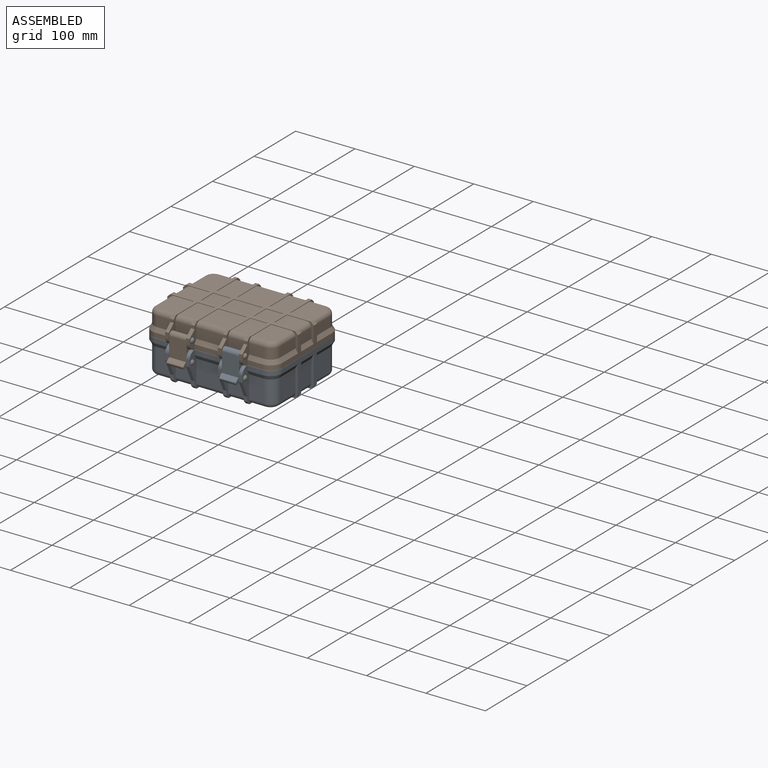
[diagram: assembled view]
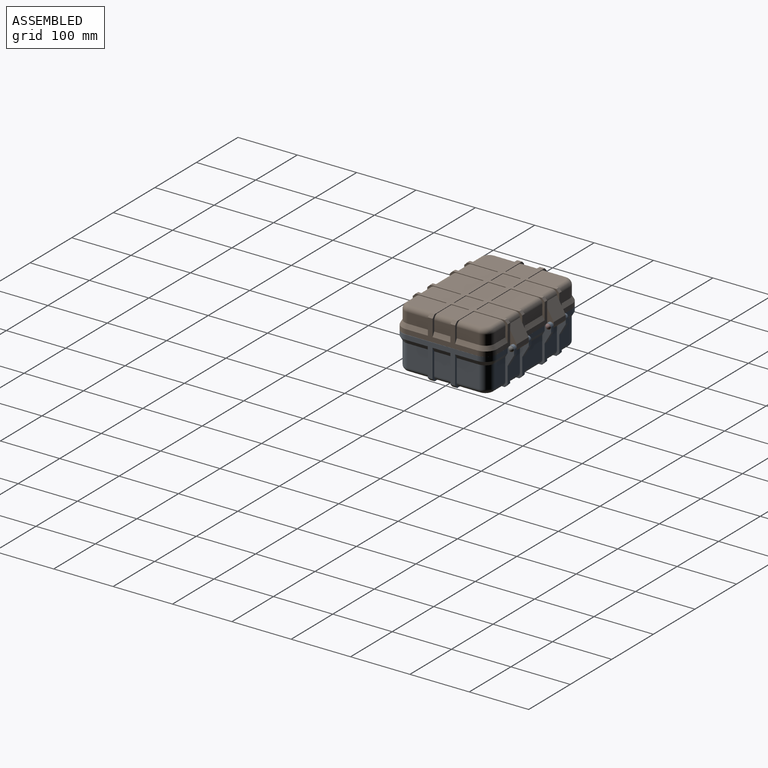
[diagram: assembled view, second angle]
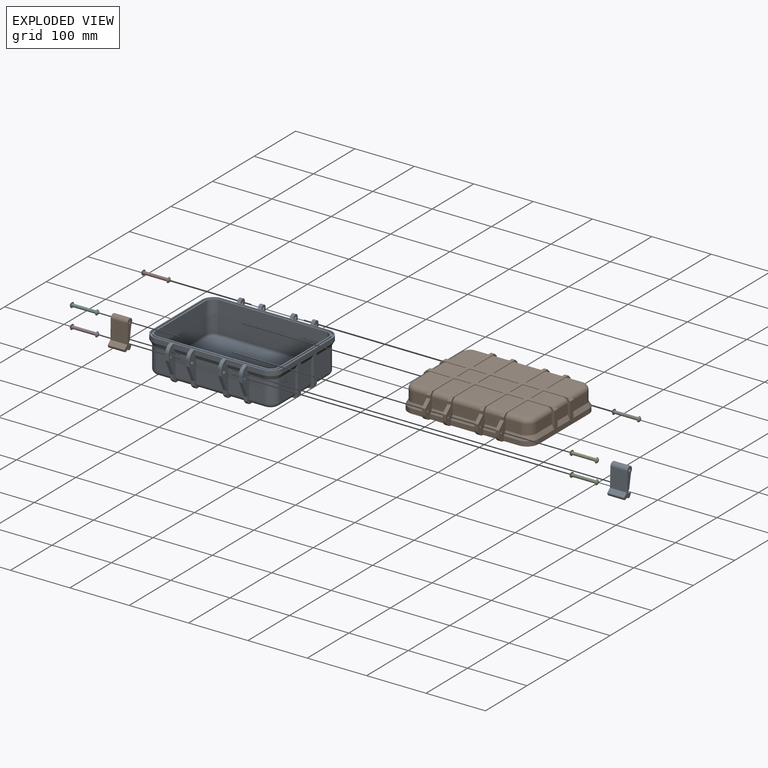
[diagram: exploded view]
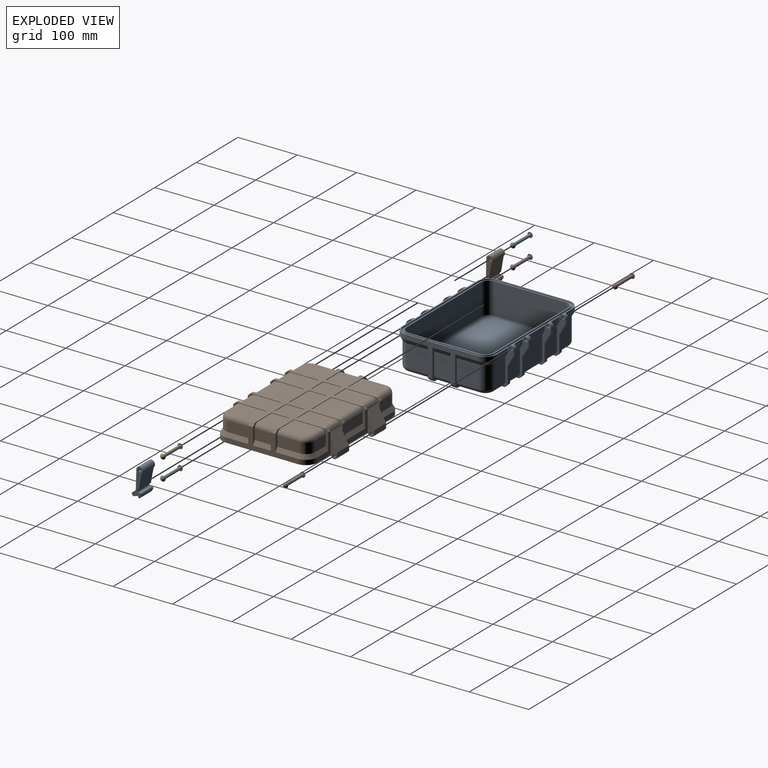
[diagram: exploded view, second angle]
FCSTD DOCUMENT  (FreeCAD 1.0R39319 (Git))
Label: AssemblyBox
License: All rights reserved
LicenseURL: https://en.wikipedia.org/wiki/All_rights_reserved
objects: App::Link×10, App::FeaturePython×10, Part::Feature×4, App::DocumentObjectGroup×1, Assembly::JointGroup×1, Assembly::AssemblyObject×1
note: 4 computed .brp shape members not serialized (recipe doc carries the construction recipe); baked Part::Feature solids carry a one-line shape summary decoded from their .brp

FEATURE [Part::Feature] Body004  label="Part005"
  shape: bbox 226 x 189 x 72 mm, 243 faces (baked)
FEATURE [Part::Feature] Body005  label="Part006"
  shape: bbox 226 x 189 x 52 mm, 209 faces (baked)
FEATURE [Part::Feature] Body006  label="Part007"
  shape: bbox 47.5 x 8.899 x 8.899 mm, 5 faces (baked)
FEATURE [Part::Feature] Body007  label="Part008"
  shape: bbox 28.5 x 19.14 x 49.09 mm, 47 faces (baked)
FEATURE [App::DocumentObjectGroup] Group
  Group = -> [Body004,Body005,Body006,Body007]
FEATURE [App::Link] Part005  label="Part009"
  LinkedObject = -> Body004
FEATURE [App::FeaturePython] GroundedJoint  # Assembly grounded joint (typed FeaturePython)
  ObjectToGround = -> Part005
FEATURE [App::Link] Part006  label="Part010"
  LinkPlacement = pos=(-3.05e-14,0.0885071,100.19) rot=(0,0.999999,-0.001104;3.14159rad)
  LinkedObject = -> Body005
  Placement = pos=(-3.05e-14,0.0885071,100.19) rot=(0,0.999999,-0.001104;3.14159rad)
FEATURE [App::Link] Part007  label="Part011"
  LinkPlacement = pos=(44.25,-86,43) rot=(-1,0,0;1.5708rad)
  LinkedObject = -> Body006
  Placement = pos=(44.25,-86,43) rot=(-1,0,0;1.5708rad)
FEATURE [App::Link] Part008  label="Part012"
  LinkPlacement = pos=(-44.75,-86,43) rot=(-1,0,0;1.5708rad)
  LinkedObject = -> Body006
  Placement = pos=(-44.75,-86,43) rot=(-1,0,0;1.5708rad)
FEATURE [App::Link] Part009  label="Part013"
  LinkPlacement = pos=(44.25,-85.9643,76.3796) rot=(1,0,0;4.71018rad)
  LinkedObject = -> Body006
  Placement = pos=(44.25,-85.9643,76.3796) rot=(1,0,0;4.71018rad)
FEATURE [App::Link] Part010  label="Part014"
  LinkPlacement = pos=(-44.75,-85.9643,76.3796) rot=(1,0,0;4.71018rad)
  LinkedObject = -> Body006
  Placement = pos=(-44.75,-85.9643,76.3796) rot=(1,0,0;4.71018rad)
FEATURE [App::Link] Part011  label="Part015"
  LinkPlacement = pos=(44.25,86,60) rot=(-1,0,0;1.5708rad)
  LinkedObject = -> Body006
  Placement = pos=(44.25,86,60) rot=(-1,0,0;1.5708rad)
FEATURE [App::Link] Part012  label="Part016"
  LinkPlacement = pos=(-44.75,86,60) rot=(-1,0,0;1.5708rad)
  LinkedObject = -> Body006
  Placement = pos=(-44.75,86,60) rot=(-1,0,0;1.5708rad)
FEATURE [App::Link] Part013  label="Part017"
  LinkPlacement = pos=(30.5,-85.9643,76.3796) rot=(-1,0,0;0.029508rad)
  LinkedObject = -> Body007
  Placement = pos=(30.5,-85.9643,76.3796) rot=(-1,0,0;0.029508rad)
FEATURE [App::Link] Part014  label="Part018"
  LinkPlacement = pos=(-58.5,-85.9643,76.3796) rot=(-1,0,0;0.014097rad)
  LinkedObject = -> Body007
  Placement = pos=(-58.5,-85.9643,76.3796) rot=(-1,0,0;0.014097rad)
FEATURE [App::FeaturePython] Joint  label="Revolute"  # Assembly joint (typed FeaturePython)
  Activated = true
  AngleMax = 0
  AngleMin = 0
  Detach1 = false
  Detach2 = false
  Distance = 0
  Distance2 = 0
  EnableAngleMax = false
  EnableAngleMin = false
  EnableLengthMax = false
  EnableLengthMin = false
  JointType = 1 (Revolute)
  LengthMax = 0
  LengthMin = 0
  Placement1 = pos=(59,86,40) rot=(-0.57735,-0.57735,-0.57735;4.18879rad)
  Placement2 = pos=(-59,86,60) rot=(0.57735,0.57735,0.57735;2.0944rad)
  Reference1 = -> Assembly [Part006.Edge219,Part006.Edge219]
  Reference2 = -> Assembly [Part005.Edge312,Part005.Edge312]
FEATURE [App::FeaturePython] Joint001  label="Fixed"  # Assembly joint (typed FeaturePython)
  Activated = true
  AngleMax = 0
  AngleMin = 0
  Detach1 = false
  Detach2 = false
  Distance = 0
  Distance2 = 0
  EnableAngleMax = false
  EnableAngleMin = false
  EnableLengthMax = false
  EnableLengthMin = false
  JointType = 0 (Fixed)
  LengthMax = 0
  LengthMin = 0
  Placement1 = pos=(20.75,0,0) rot=(0.707107,0,0.707107;3.14159rad)
  Placement2 = pos=(65,-86,43) rot=(0.57735,0.57735,0.57735;2.0944rad)
  Reference1 = -> Assembly [Part007.Edge2,Part007.Edge2]
  Reference2 = -> Assembly [Part005.Edge396,Part005.Edge396]
FEATURE [App::FeaturePython] Joint002  label="Fixed001"  # Assembly joint (typed FeaturePython)
  Activated = true
  AngleMax = 0
  AngleMin = 0
  Detach1 = false
  Detach2 = false
  Distance = 0
  Distance2 = 0
  EnableAngleMax = false
  EnableAngleMin = false
  EnableLengthMax = false
  EnableLengthMin = false
  JointType = 0 (Fixed)
  LengthMax = 0
  LengthMin = 0
  Placement1 = pos=(20.75,0,0) rot=(0.707107,0,0.707107;3.14159rad)
  Placement2 = pos=(-24,-86,43) rot=(0.57735,0.57735,0.57735;2.0944rad)
  Reference1 = -> Assembly [Part008.Edge2,Part008.Edge2]
  Reference2 = -> Assembly [Part005.Edge212,Part005.Edge212]
FEATURE [App::FeaturePython] Joint003  label="Fixed002"  # Assembly joint (typed FeaturePython)
  Activated = true
  AngleMax = 0
  AngleMin = 0
  Detach1 = false
  Detach2 = false
  Distance = 0
  Distance2 = 0
  EnableAngleMax = false
  EnableAngleMin = false
  EnableLengthMax = false
  EnableLengthMin = false
  JointType = 0 (Fixed)
  LengthMax = 0
  LengthMin = 0
  Placement1 = pos=(20.75,0,0) rot=(-0.707107,0,-0.707107;3.14159rad)
  Placement2 = pos=(-65,-86,24) rot=(-0.57735,-0.57735,-0.57735;4.18879rad)
  Reference1 = -> Assembly [Part009.Edge2,Part009.Edge2]
  Reference2 = -> Assembly [Part006.Edge200,Part006.Edge200]
FEATURE [App::FeaturePython] Joint004  label="Fixed003"  # Assembly joint (typed FeaturePython)
  Activated = true
  AngleMax = 0
  AngleMin = 0
  Detach1 = false
  Detach2 = false
  Distance = 0
  Distance2 = 0
  EnableAngleMax = false
  EnableAngleMin = false
  EnableLengthMax = false
  EnableLengthMin = false
  JointType = 0 (Fixed)
  LengthMax = 0
  LengthMin = 0
  Placement1 = pos=(20.75,0,0) rot=(-0.707107,0,-0.707107;3.14159rad)
  Placement2 = pos=(24,-86,24) rot=(-0.57735,-0.57735,-0.57735;4.18879rad)
  Reference1 = -> Assembly [Part010.Edge2,Part010.Edge2]
  Reference2 = -> Assembly [Part006.Edge349,Part006.Edge349]
FEATURE [App::FeaturePython] Joint005  label="Fixed004"  # Assembly joint (typed FeaturePython)
  Activated = true
  AngleMax = 0
  AngleMin = 0
  Detach1 = false
  Detach2 = false
  Distance = 0
  Distance2 = 0
  EnableAngleMax = false
  EnableAngleMin = false
  EnableLengthMax = false
  EnableLengthMin = false
  JointType = 0 (Fixed)
  LengthMax = 0
  LengthMin = 0
  Placement1 = pos=(20.75,0,0) rot=(0.707107,0,0.707107;3.14159rad)
  Placement2 = pos=(65,86,60) rot=(0.57735,0.57735,0.57735;2.0944rad)
  Reference1 = -> Assembly [Part011.Edge2,Part011.Edge2]
  Reference2 = -> Assembly [Part005.Edge22,Part005.Edge22]
FEATURE [App::FeaturePython] Joint006  label="Fixed005"  # Assembly joint (typed FeaturePython)
  Activated = true
  AngleMax = 0
  AngleMin = 0
  Detach1 = false
  Detach2 = false
  Distance = 0
  Distance2 = 0
  EnableAngleMax = false
  EnableAngleMin = false
  EnableLengthMax = false
  EnableLengthMin = false
  JointType = 0 (Fixed)
  LengthMax = 0
  LengthMin = 0
  Placement1 = pos=(20.75,0,0) rot=(0.707107,0,0.707107;3.14159rad)
  Placement2 = pos=(-24,86,60) rot=(0.57735,0.57735,0.57735;2.0944rad)
  Reference1 = -> Assembly [Part012.Edge2,Part012.Edge2]
  Reference2 = -> Assembly [Part005.Edge342,Part005.Edge342]
FEATURE [App::FeaturePython] Joint007  label="Revolute001"  # Assembly joint (typed FeaturePython)
  Activated = true
  AngleMax = 0
  AngleMin = 0
  Detach1 = false
  Detach2 = false
  Distance = 0
  Distance2 = 0
  EnableAngleMax = false
  EnableAngleMin = false
  EnableLengthMax = false
  EnableLengthMin = false
  JointType = 1 (Revolute)
  LengthMax = 0
  LengthMin = 0
  Placement1 = pos=(-59,-86,24) rot=(-0.57735,-0.57735,-0.57735;4.18879rad)
  Placement2 = pos=(28.5,0,-1.42e-14) rot=(0.57735,0.57735,0.57735;2.0944rad)
  Reference1 = -> Assembly [Part006.Edge214,Part006.Edge214]
  Reference2 = -> Assembly [Part013.Edge53,Part013.Edge53]
FEATURE [App::FeaturePython] Joint008  label="Revolute002"  # Assembly joint (typed FeaturePython)
  Activated = true
  AngleMax = 0
  AngleMin = 0
  Detach1 = false
  Detach2 = false
  Distance = 0
  Distance2 = 0
  EnableAngleMax = false
  EnableAngleMin = false
  EnableLengthMax = false
  EnableLengthMin = false
  JointType = 1 (Revolute)
  LengthMax = 0
  LengthMin = 0
  Placement1 = pos=(28.5,0,-1.42e-14) rot=(0.57735,0.57735,0.57735;2.0944rad)
  Placement2 = pos=(30,-86,24) rot=(-0.57735,-0.57735,-0.57735;4.18879rad)
  Reference1 = -> Assembly [Part014.Edge53,Part014.Edge53]
  Reference2 = -> Assembly [Part006.Edge365,Part006.Edge365]
FEATURE [Assembly::JointGroup] Joints
  Group = -> [GroundedJoint,Joint,Joint001,Joint002,Joint003,Joint004,Joint005,Joint006,Joint007,Joint008]
FEATURE [Assembly::AssemblyObject] Assembly
  Group = -> [Joints,Part005,GroundedJoint,Part006,Part007,Part008,Part009,Part010,Part011,Part012,Part013,Part014,Joint,Joint001,Joint002,Joint003,Joint004,Joint005,Joint006,Joint007,Joint008]
  Origin = -> Origin
  Type = Assembly
